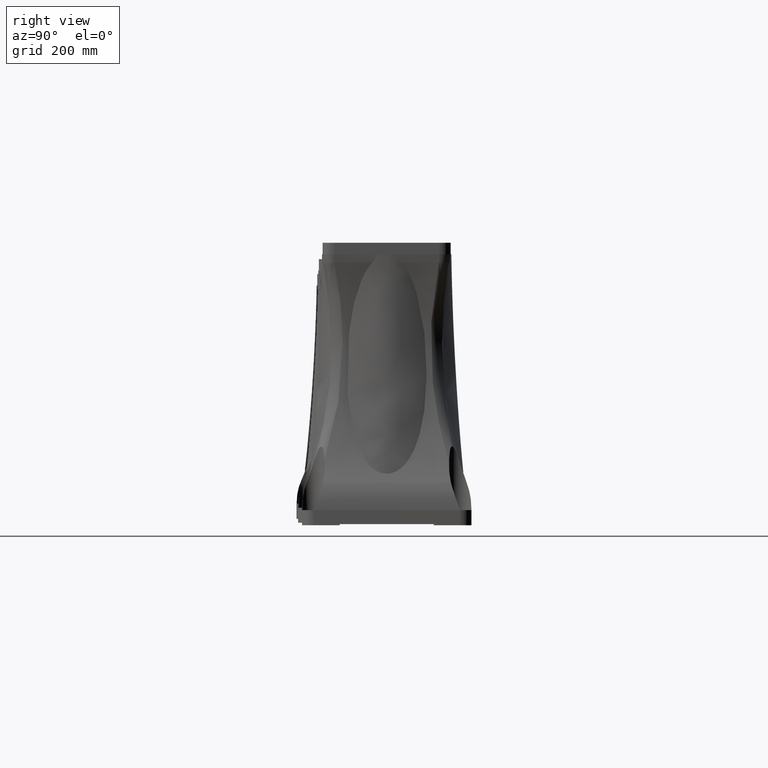
[diagram: clean part render]
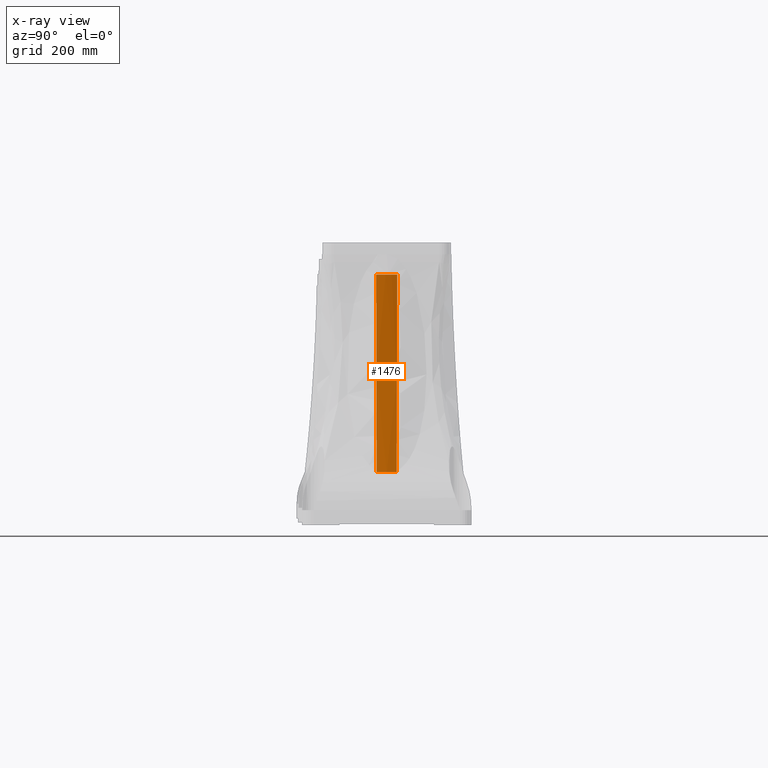
[diagram: x-ray — body ghosted, one internal face saturated and labeled with its STEP entity id]
A machine part, right view, then the same camera in x-ray: the body is ghosted and one INTERNAL B-rep face — a face not visible from any outside direction — is saturated and labeled: STEP entity #1476.
In plain terms, the highlighted face is a freeform B-spline surface patch.
Its self-contained STEP definition (entity closure, byte-faithful):
#1476=ADVANCED_FACE('',(#2605),#2606,.F.);
#2605=FACE_BOUND('',#8464,.T.);
#2606=(B_SPLINE_SURFACE(3,3,((#8466,#8467,#8468,#8469,#8470,#8471,#8472),(#8473,#8474,#8475,#8476,#8477,#8478,#8479),(#8480,#8481,#8482,#8483,#8484,#8485,#8486),(#8487,#8488,#8489,#8490,#8491,#8492,#8493),(#8494,#8495,#8496,#8497,#8498,#8499,#8500),(#8501,#8502,#8503,#8504,#8505,#8506,#8507),(#8508,#8509,#8510,#8511,#8512,#8513,#8514)),.UNSPECIFIED.,.T.,.T.,.F.)B_SPLINE_SURFACE_WITH_KNOTS((4,3,4),(4,3,4),(0.0,0.5,1.0),(0.0,0.5,1.0),.UNSPECIFIED.)RATIONAL_B_SPLINE_SURFACE(((1.0,0.333333333333334,0.333333333333334,1.0,0.333333333333334,0.333333333333334,1.0),(0.333333333333334,0.111111111111111,0.111111111111111,0.333333333333334,0.111111111111111,0.111111111111111,0.333333333333334),(0.333333333333334,0.111111111111111,0.111111111111111,0.333333333333334,0.111111111111111,0.111111111111111,0.333333333333334),(1.0,0.333333333333334,0.333333333333334,1.0,0.333333333333334,0.333333333333334,1.0),(0.333333333333334,0.111111111111111,0.111111111111111,0.333333333333334,0.111111111111111,0.111111111111111,0.333333333333334),(0.333333333333334,0.111111111111111,0.111111111111111,0.333333333333334,0.111111111111111,0.111111111111111,0.333333333333334),(1.0,0.333333333333334,0.333333333333334,1.0,0.333333333333334,0.333333333333334,1.0)))BOUNDED_SURFACE()REPRESENTATION_ITEM('')GEOMETRIC_REPRESENTATION_ITEM()SURFACE());
#8464=EDGE_LOOP('',(#14211,#14212,#14213,#14214,#14215,#14216));
#8466=CARTESIAN_POINT('',(736.588,-10.5555555555552,-223.982991484503));
#8467=CARTESIAN_POINT('',(736.588000000001,1049.44444444445,-223.982991484503));
#8468=CARTESIAN_POINT('',(-323.412,1049.44444444445,-223.982991484503));
#8469=CARTESIAN_POINT('',(-323.412,-10.5555555555548,-223.982991484503));
#8470=CARTESIAN_POINT('',(-323.412,-1070.55555555556,-223.982991484503));
#8471=CARTESIAN_POINT('',(736.588,-1070.55555555556,-223.982991484503));
#8472=CARTESIAN_POINT('',(736.588,-10.5555555555552,-223.982991484503));
#8473=CARTESIAN_POINT('',(-13.4119999999985,-10.5555555555552,-223.982991484503));
#8474=CARTESIAN_POINT('',(-13.4119999999981,-450.555555555553,-223.982991484504));
#8475=CARTESIAN_POINT('',(426.588,-450.555555555552,-223.982991484504));
#8476=CARTESIAN_POINT('',(426.588,-10.5555555555548,-223.982991484503));
#8477=CARTESIAN_POINT('',(426.587999999999,429.444444444443,-223.982991484504));
#8478=CARTESIAN_POINT('',(-13.4119999999989,429.444444444443,-223.982991484504));
#8479=CARTESIAN_POINT('',(-13.4119999999985,-10.5555555555552,-223.982991484503));
#8480=CARTESIAN_POINT('',(-13.411999999999,-10.5555555555553,2611.0169923155));
#8481=CARTESIAN_POINT('',(-13.4119999999983,-450.555555555554,2611.0169923155));
#8482=CARTESIAN_POINT('',(426.588000000001,-450.555555555553,2611.0169923155));
#8483=CARTESIAN_POINT('',(426.588,-10.5555555555546,2611.0169923155));
#8484=CARTESIAN_POINT('',(426.587999999999,429.444444444444,2611.0169923155));
#8485=CARTESIAN_POINT('',(-13.4119999999997,429.444444444443,2611.0169923155));
#8486=CARTESIAN_POINT('',(-13.411999999999,-10.5555555555553,2611.0169923155));
#8487=CARTESIAN_POINT('',(736.588,-10.5555555555553,2611.01699231549));
#8488=CARTESIAN_POINT('',(736.588000000001,1049.44444444445,2611.0169923155));
#8489=CARTESIAN_POINT('',(-323.412,1049.44444444445,2611.0169923155));
#8490=CARTESIAN_POINT('',(-323.412,-10.5555555555546,2611.01699231549));
#8491=CARTESIAN_POINT('',(-323.412,-1070.55555555556,2611.0169923155));
#8492=CARTESIAN_POINT('',(736.588,-1070.55555555556,2611.0169923155));
#8493=CARTESIAN_POINT('',(736.588,-10.5555555555553,2611.01699231549));
#8494=CARTESIAN_POINT('',(1486.588,-10.5555555555553,2611.0169923155));
#8495=CARTESIAN_POINT('',(1486.588,2549.44444444445,2611.0169923155));
#8496=CARTESIAN_POINT('',(-1073.412,2549.44444444445,2611.0169923155));
#8497=CARTESIAN_POINT('',(-1073.412,-10.5555555555546,2611.0169923155));
#8498=CARTESIAN_POINT('',(-1073.412,-2570.55555555556,2611.0169923155));
#8499=CARTESIAN_POINT('',(1486.588,-2570.55555555556,2611.0169923155));
#8500=CARTESIAN_POINT('',(1486.588,-10.5555555555553,2611.0169923155));
#8501=CARTESIAN_POINT('',(1486.588,-10.5555555555552,-223.982991484503));
#8502=CARTESIAN_POINT('',(1486.588,2549.44444444445,-223.982991484503));
#8503=CARTESIAN_POINT('',(-1073.412,2549.44444444445,-223.982991484503));
#8504=CARTESIAN_POINT('',(-1073.412,-10.5555555555548,-223.982991484503));
#8505=CARTESIAN_POINT('',(-1073.412,-2570.55555555556,-223.982991484503));
#8506=CARTESIAN_POINT('',(1486.588,-2570.55555555556,-223.982991484503));
#8507=CARTESIAN_POINT('',(1486.588,-10.5555555555552,-223.982991484503));
#8508=CARTESIAN_POINT('',(736.588,-10.5555555555552,-223.982991484503));
#8509=CARTESIAN_POINT('',(736.588000000001,1049.44444444445,-223.982991484503));
#8510=CARTESIAN_POINT('',(-323.412,1049.44444444445,-223.982991484503));
#8511=CARTESIAN_POINT('',(-323.412,-10.5555555555548,-223.982991484503));
#8512=CARTESIAN_POINT('',(-323.412,-1070.55555555556,-223.982991484503));
#8513=CARTESIAN_POINT('',(736.588,-1070.55555555556,-223.982991484503));
#8514=CARTESIAN_POINT('',(736.588,-10.5555555555552,-223.982991484503));
#14211=ORIENTED_EDGE('',*,*,#15609,.T.);
#14212=ORIENTED_EDGE('',*,*,#15610,.T.);
#14213=ORIENTED_EDGE('',*,*,#15611,.T.);
#14214=ORIENTED_EDGE('',*,*,#15612,.T.);
#14215=ORIENTED_EDGE('',*,*,#15613,.T.);
#14216=ORIENTED_EDGE('',*,*,#15614,.T.);
#15609=EDGE_CURVE('',#17641,#17642,#17643,.T.);
#15610=EDGE_CURVE('',#17642,#17644,#17645,.T.);
#15611=EDGE_CURVE('',#17644,#17646,#17647,.F.);
#15612=EDGE_CURVE('',#17646,#17648,#17649,.T.);
#15613=EDGE_CURVE('',#17648,#17650,#17651,.T.);
#15614=EDGE_CURVE('',#17650,#17641,#17652,.T.);
#17641=VERTEX_POINT('',#28867);
#17642=VERTEX_POINT('',#28868);
#17643=B_SPLINE_CURVE_WITH_KNOTS('',3,(#28869,#28870,#28871,#28872,#28873,#28874,#28875,#28876,#28877,#28878,#28879,#28880,#28881,#28882),.UNSPECIFIED.,.F.,.F.,(4,2,2,2,2,2,4),(0.0,0.0656609784686861,0.131321956937372,0.262643913874745,0.328304892343431,0.393965870812117,0.52528782774949),.UNSPECIFIED.);
#17644=VERTEX_POINT('',#28883);
#17645=B_SPLINE_CURVE_WITH_KNOTS('',3,(#28884,#28885,#28886,#28887),.UNSPECIFIED.,.F.,.F.,(4,4),(0.0,0.00110483484028973),.UNSPECIFIED.);
#17646=VERTEX_POINT('',#28888);
#17647=(B_SPLINE_CURVE(3,(#28890,#28891,#28892,#28893),.UNSPECIFIED.,.F.,.F.)B_SPLINE_CURVE_WITH_KNOTS((4,4),(0.0,1.0),.UNSPECIFIED.)RATIONAL_B_SPLINE_CURVE((1.0,0.988980967817772,0.988980967817772,1.0))BOUNDED_CURVE()REPRESENTATION_ITEM('')GEOMETRIC_REPRESENTATION_ITEM()CURVE());
#17648=VERTEX_POINT('',#28900);
#17649=B_SPLINE_CURVE_WITH_KNOTS('',3,(#28901,#28902,#28903,#28904),.UNSPECIFIED.,.F.,.F.,(4,4),(0.0,0.00110483484029017),.UNSPECIFIED.);
#17650=VERTEX_POINT('',#28905);
#17651=B_SPLINE_CURVE_WITH_KNOTS('',3,(#28906,#28907,#28908,#28909,#28910,#28911,#28912,#28913,#28914,#28915,#28916,#28917),.UNSPECIFIED.,.F.,.F.,(4,2,2,2,2,4),(4.44089209850063E-016,0.131308166690422,0.262616333380842,0.328270416726053,0.393924500071263,0.525232666761684),.UNSPECIFIED.);
#17652=(B_SPLINE_CURVE(3,(#28919,#28920,#28921,#28922),.UNSPECIFIED.,.F.,.F.)B_SPLINE_CURVE_WITH_KNOTS((4,4),(0.0,1.0),.UNSPECIFIED.)RATIONAL_B_SPLINE_CURVE((1.0,0.993273759882504,0.993273759882504,1.0))BOUNDED_CURVE()REPRESENTATION_ITEM('')GEOMETRIC_REPRESENTATION_ITEM()CURVE());
#28867=CARTESIAN_POINT('',(393.234115169496,16.1604523249063,607.484866286507));
#28868=CARTESIAN_POINT('',(359.379550699394,17.5828210264065,1131.33793884912));
#28869=CARTESIAN_POINT('',(393.234109415417,16.1604931634171,607.48486553297));
#28870=CARTESIAN_POINT('',(390.593492821811,16.1893452411051,629.212519235465));
#28871=CARTESIAN_POINT('',(388.125255904506,16.2216777478955,650.960718294029));
#28872=CARTESIAN_POINT('',(383.514726404578,16.2938979731394,694.490743588563));
#28873=CARTESIAN_POINT('',(381.372829150927,16.3337517222409,716.268993070697));
#28874=CARTESIAN_POINT('',(375.413437717432,16.4655560045317,781.641519892318));
#28875=CARTESIAN_POINT('',(372.060941073882,16.5695004650905,825.273470549867));
#28876=CARTESIAN_POINT('',(367.896991403703,16.7497103565507,890.791456252219));
#28877=CARTESIAN_POINT('',(366.653420806837,16.813816272013,912.644458042239));
#28878=CARTESIAN_POINT('',(364.44892033282,16.9494840649648,956.357593058824));
#28879=CARTESIAN_POINT('',(363.487883874166,17.0210981643843,978.218973829996));
#28880=CARTESIAN_POINT('',(361.020289117555,17.2461660186477,1043.81728206891));
#28881=CARTESIAN_POINT('',(359.928348264283,17.4099794147596,1087.56834432959));
#28882=CARTESIAN_POINT('',(359.379550699394,17.5828210264065,1131.33793884912));
#28883=CARTESIAN_POINT('',(359.368555668552,17.5723023721407,1132.44266890281));
#28884=CARTESIAN_POINT('',(359.379550699394,17.5828210264065,1131.33793884912));
#28885=CARTESIAN_POINT('',(359.374933069875,17.5842753304649,1131.7062199507));
#28886=CARTESIAN_POINT('',(359.371268258962,17.5807695793931,1132.07446330836));
#28887=CARTESIAN_POINT('',(359.368555668552,17.5723023721407,1132.44266890281));
#28888=CARTESIAN_POINT('',(359.368555668552,-38.6834134832511,1132.44266890281));
#28890=CARTESIAN_POINT('',(359.368555668552,-38.6834134832511,1132.44266890281));
#28891=CARTESIAN_POINT('',(362.801666302227,-20.0359732255269,1132.44266890281));
#28892=CARTESIAN_POINT('',(362.801666302227,-1.07513788558354,1132.44266890281));
#28893=CARTESIAN_POINT('',(359.368555668552,17.5723023721407,1132.44266890281));
#28900=CARTESIAN_POINT('',(359.379550699394,-38.6939321375167,1131.33793884912));
#28901=CARTESIAN_POINT('',(359.368555668552,-38.6834134832511,1132.44266890281));
#28902=CARTESIAN_POINT('',(359.371268258962,-38.6918806905035,1132.07446330836));
#28903=CARTESIAN_POINT('',(359.374933069875,-38.695386441575,1131.7062199507));
#28904=CARTESIAN_POINT('',(359.379550699394,-38.6939321375166,1131.33793884912));
#28905=CARTESIAN_POINT('',(393.234111333452,-37.2715906616283,607.48486578415));
#28906=CARTESIAN_POINT('',(359.379550699394,-38.6939321375167,1131.33793884912));
#28907=CARTESIAN_POINT('',(359.928307094184,-38.5211034922123,1087.57162786938));
#28908=CARTESIAN_POINT('',(361.020379294315,-38.3572615392643,1043.8131878524));
#28909=CARTESIAN_POINT('',(364.310892831345,-38.0571504834613,956.341877939051));
#28910=CARTESIAN_POINT('',(366.509439350318,-37.9208699974854,912.623381213193));
#28911=CARTESIAN_POINT('',(370.673165191582,-37.7406739536832,847.109846404334));
#28912=CARTESIAN_POINT('',(372.20568513288,-37.6845972599155,825.281470300901));
#28913=CARTESIAN_POINT('',(375.569700963234,-37.580592196263,781.644294648184));
#28914=CARTESIAN_POINT('',(377.401284499928,-37.5326977953769,759.834586666764));
#28915=CARTESIAN_POINT('',(383.36131266022,-37.40089135202,694.457836933379));
#28916=CARTESIAN_POINT('',(387.953346779213,-37.3293032885245,650.936301126607));
#28917=CARTESIAN_POINT('',(393.23410941543,-37.2716042744342,607.484865532972));
#28919=CARTESIAN_POINT('',(393.234115169496,-37.2715634360164,607.484866286507));
#28920=CARTESIAN_POINT('',(395.774853510841,-19.5211965699792,607.484866286507));
#28921=CARTESIAN_POINT('',(395.774853510841,-1.58991454113103,607.484866286507));
#28922=CARTESIAN_POINT('',(393.234115169496,16.1604523249062,607.484866286507));